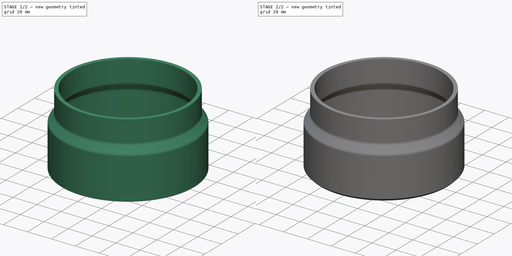
[diagram: build sequence overview — one tinted view per stage of 2, left to right]
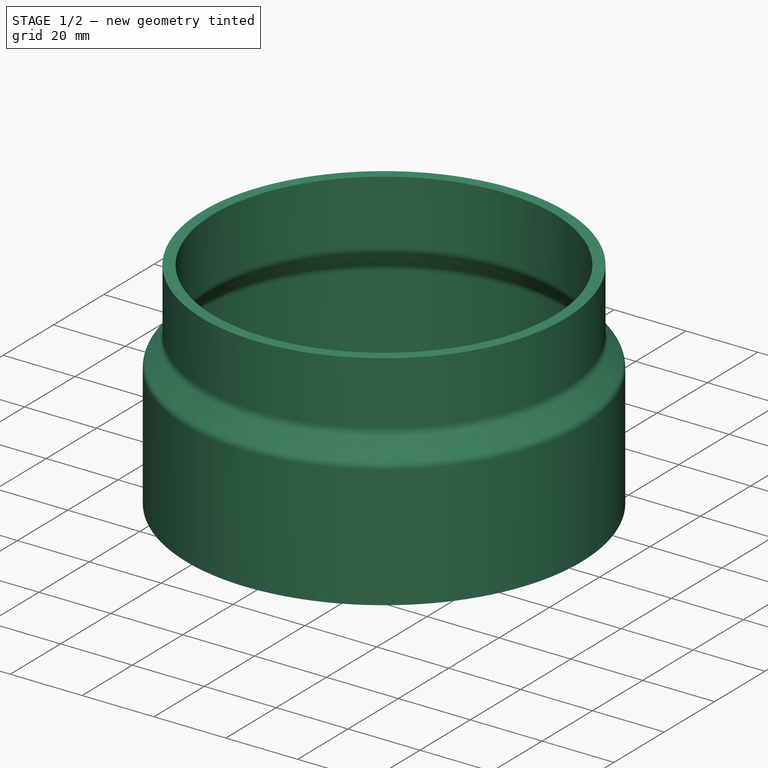
[diagram: stage 1 of 2 — iso view after this stage's code; geometry added in this stage tinted green]
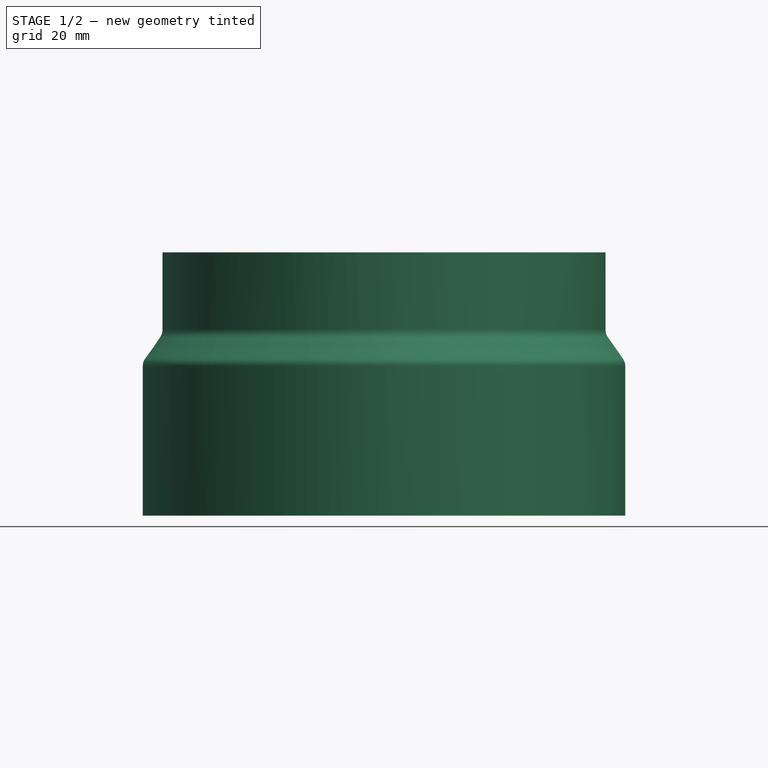
[diagram: stage 1 of 2 — front view after this stage's code; geometry added in this stage tinted green]
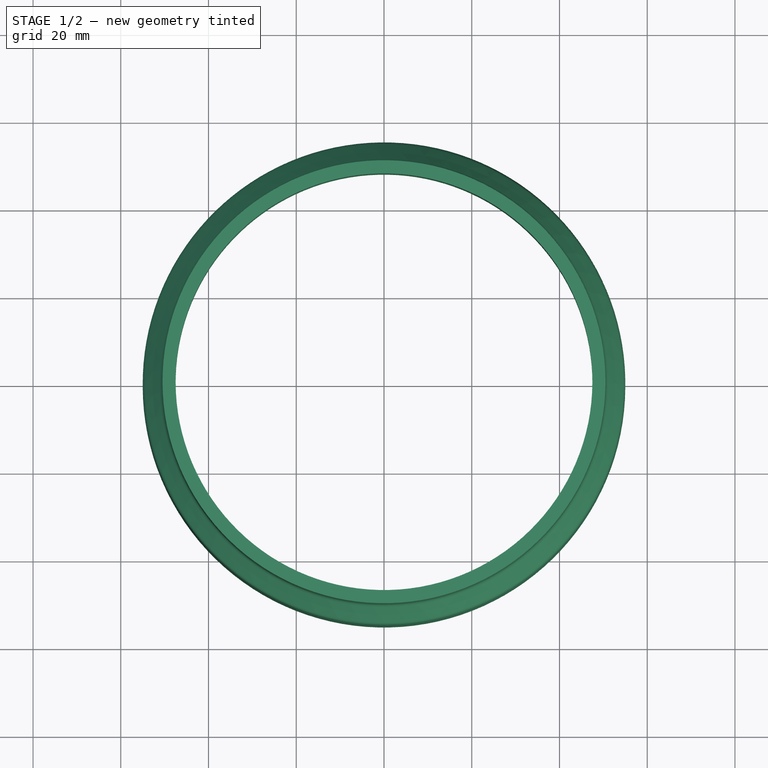
[diagram: stage 1 of 2 — top view after this stage's code; geometry added in this stage tinted green]
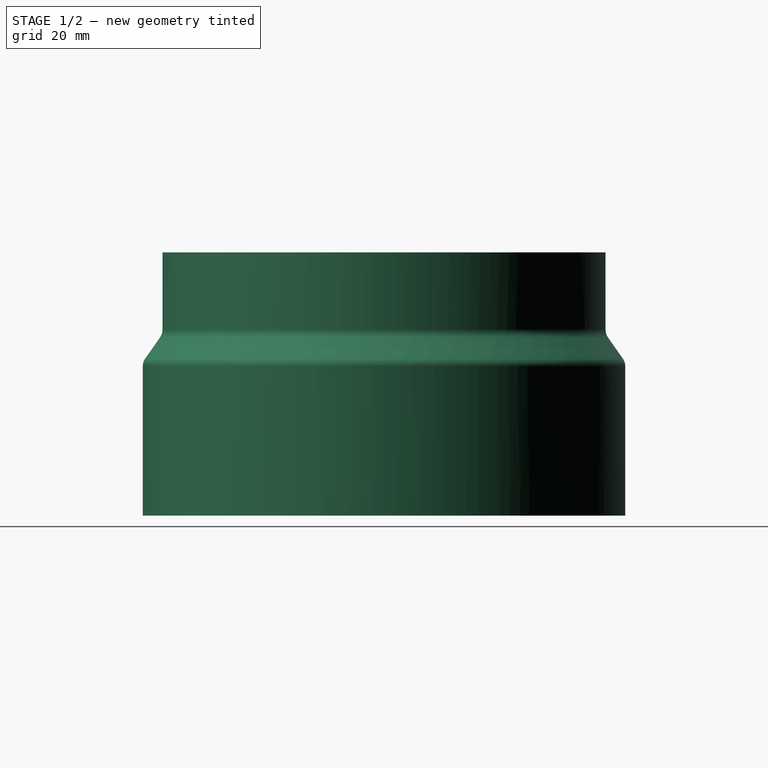
[diagram: stage 1 of 2 — right view after this stage's code; geometry added in this stage tinted green]
FCSTD DOCUMENT  (FreeCAD 0.20R29410 (Git))
Label: blower hose adapter
License: All rights reserved
LicenseURL: http://en.wikipedia.org/wiki/All_rights_reserved
objects: Sketcher::SketchObject×1, PartDesign::Revolution×1, PartDesign::Fillet×1, PartDesign::Chamfer×1, PartDesign::Body×1
note: 8 computed .brp shape members not serialized (recipe doc carries the construction recipe); baked Part::Feature solids carry a one-line shape summary decoded from their .brp

FEATURE [Sketcher::SketchObject] Sketch
  FullyConstrained = false
  MapMode = 5
  Placement = pos=(0,0,0) rot=(1,0,0;1.5708rad)
  Support = -> [XZ_Plane001]
  sketch-geometry (9):
    g0: LineSegment StartX=52 StartY=0 StartZ=0 EndX=52 EndY=35 EndZ=0
    g1: LineSegment StartX=52 StartY=35 StartZ=0 EndX=47.5 EndY=41.4267 EndZ=0
    g2: LineSegment StartX=47.5 StartY=41.4267 StartZ=0 EndX=47.5 EndY=60 EndZ=0
    g3: LineSegment StartX=47.5 StartY=60 StartZ=0 EndX=50.5 EndY=60 EndZ=0
    g4: LineSegment StartX=50.5 StartY=60 StartZ=0 EndX=50.5 EndY=41.4267 EndZ=0
    g5: LineSegment StartX=50.5 StartY=41.4267 StartZ=0 EndX=55 EndY=35 EndZ=0
    g6: LineSegment StartX=55 StartY=35 StartZ=0 EndX=55 EndY=0 EndZ=0
    g7: LineSegment StartX=52 StartY=0 StartZ=0 EndX=55 EndY=0 EndZ=0
    g8: LineSegment StartX=55 StartY=35 StartZ=0 EndX=1.39923 EndY=35 EndZ=0
  constraints (26):
    c: Vertical(g0)
    c: Coincident(g1,g0)
    c: Vertical(g2)
    c: Coincident(g3,g2)
    c: Horizontal(g3)
    c: Coincident(g4,g3)
    c: Vertical(g4)
    c: Coincident(g5,g4)
    c: Coincident(g6,g5)
    c: Vertical(g6)
    c: Coincident(g7,g0)
    c: Coincident(g7,g6)
    c: Horizontal(g7)
    c: DistanceX(g-1,g6) = 55
    c: DistanceX(g7,g7) = 3
    c: DistanceX(g3,g3) = 3
    c: DistanceX(g-1,g3) = 50.5
    c: Coincident(g1,g2)
    c: Parallel(g1,g5)
    c: Angle(g1,g0) = 2.53073
    c: DistanceY(g6,g6) = 35
    c: PointOnObject(g0,g-1)
    c: DistanceY(g2) = 60
    c: Coincident(g8,g5)
    c: Horizontal(g8)
    c: PointOnObject(g0,g8)
FEATURE [PartDesign::Revolution] Revolution
  Angle = 360
  Axis = (0,2e-16,1)
  Base = (0,0,0)
  Placement = pos=(0,0,0) rot=(1,0,0;1.5708rad)
  Profile = -> Sketch
  ReferenceAxis = -> Sketch [V_Axis]
  Reversed = true
FEATURE [PartDesign::Fillet] Fillet
  Base = -> Revolution [Face6,Face2]
  BaseFeature = -> Revolution
  Placement = pos=(0,0,0) rot=(1,0,0;1.5708rad)
  Radius = 3
  SupportTransform = false
  UseAllEdges = false
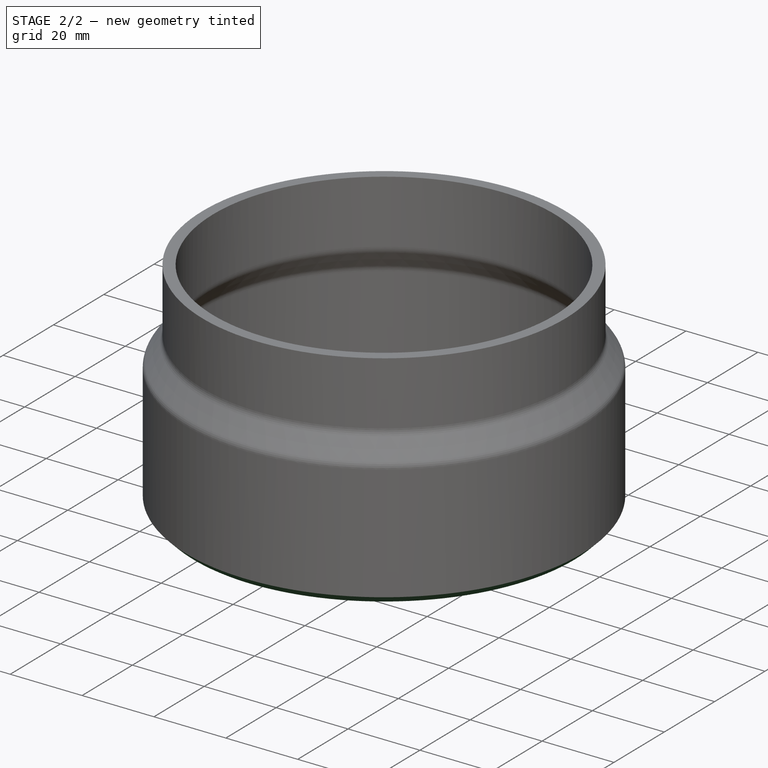
[diagram: stage 2 of 2 — iso view after this stage's code; geometry added in this stage tinted green]
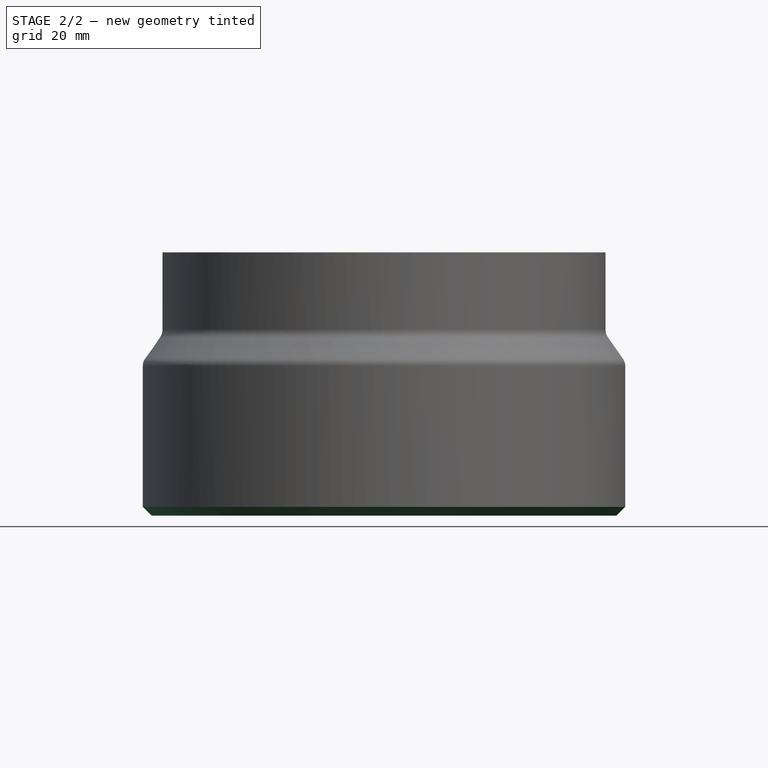
[diagram: stage 2 of 2 — front view after this stage's code; geometry added in this stage tinted green]
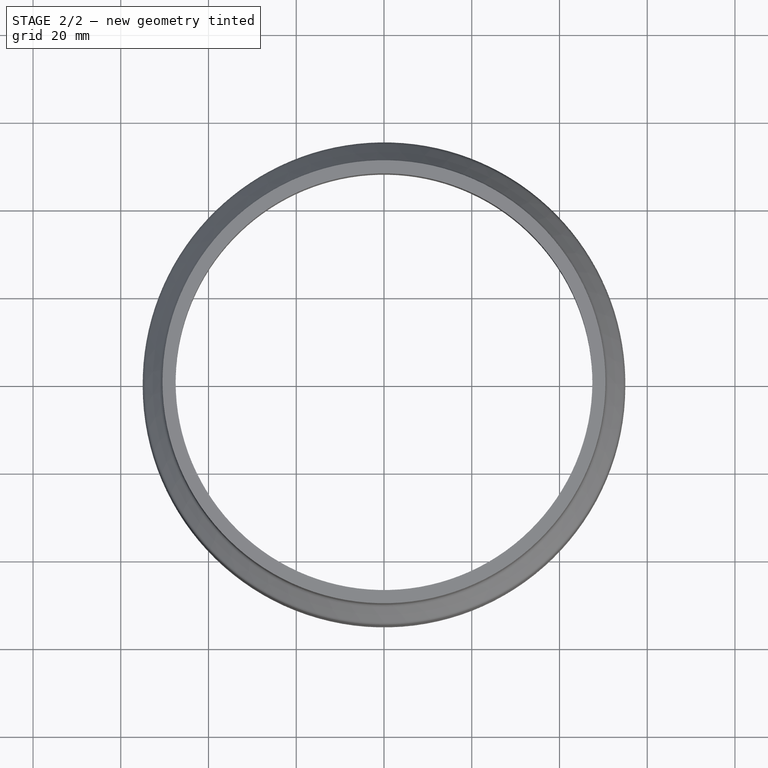
[diagram: stage 2 of 2 — top view after this stage's code; geometry added in this stage tinted green]
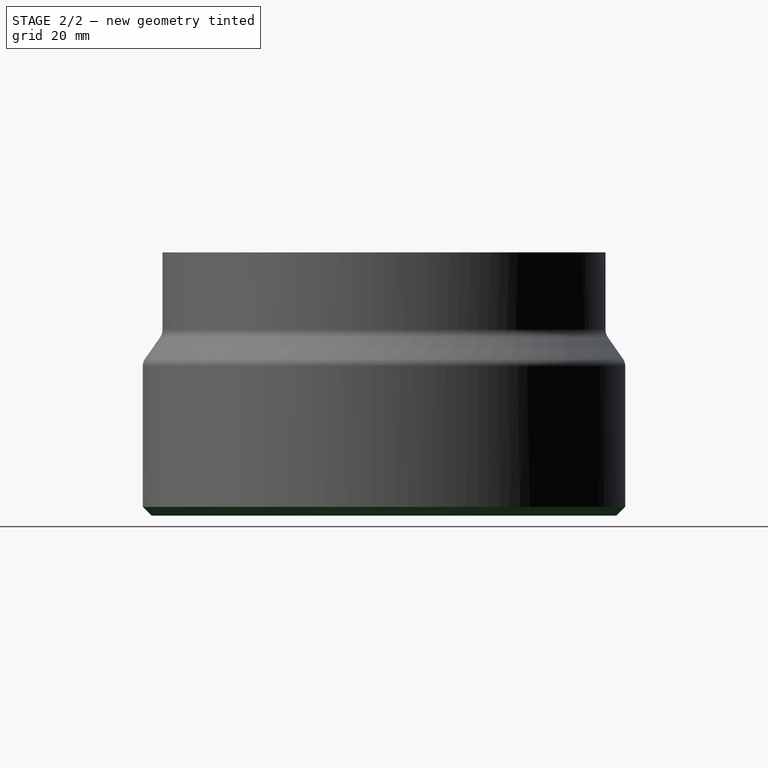
[diagram: stage 2 of 2 — right view after this stage's code; geometry added in this stage tinted green]
FEATURE [PartDesign::Chamfer] Chamfer
  Angle = 45
  Base = -> Fillet [Edge6]
  BaseFeature = -> Fillet
  ChamferType = 0
  FlipDirection = false
  Placement = pos=(0,0,0) rot=(1,0,0;1.5708rad)
  Size = 2
  Size2 = 1
  SupportTransform = false
  UseAllEdges = false
FEATURE [PartDesign::Body] Body001
  Group = -> [Sketch,Revolution,Fillet,Chamfer]
  Origin = -> Origin001
  Tip = -> Chamfer
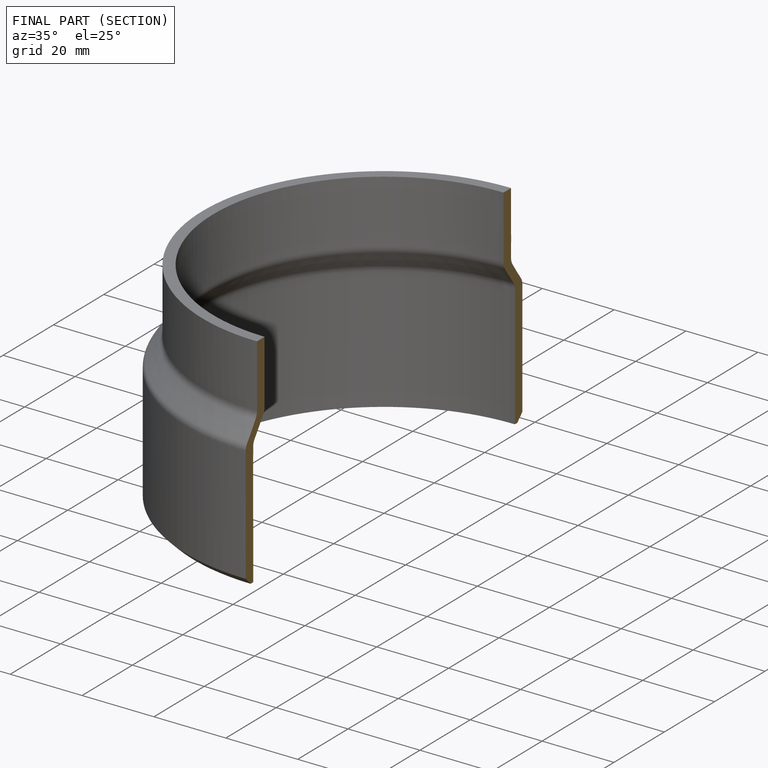
[diagram: finished part — half-section view (interior)]
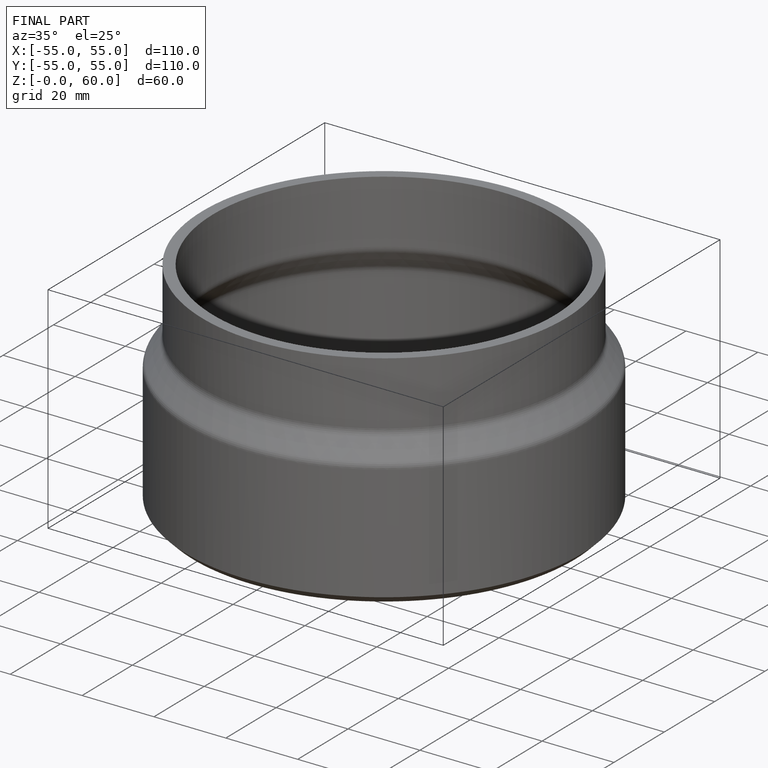
[diagram: finished part — iso view with bounding-box wireframe]
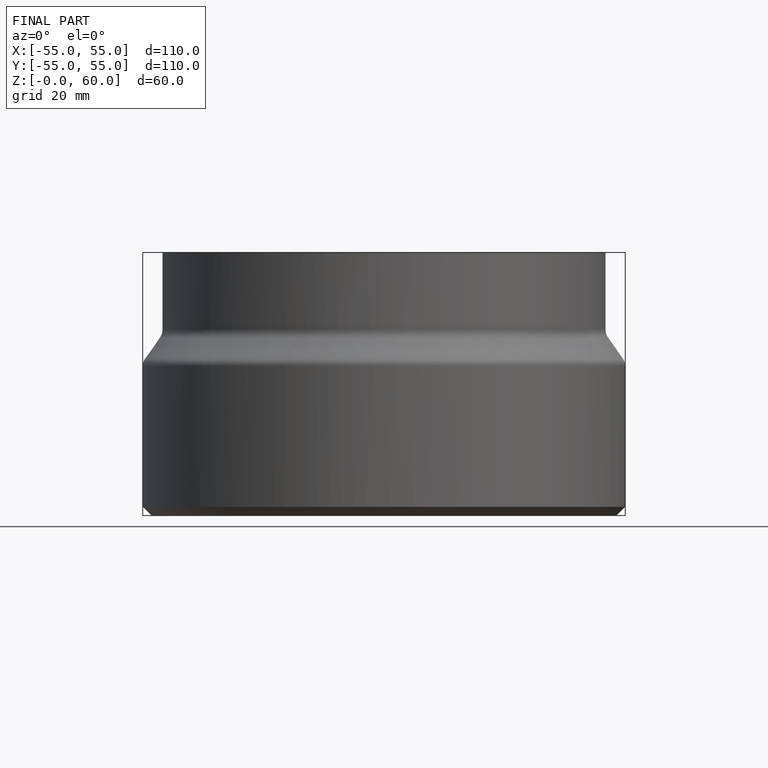
[diagram: finished part — front view with bounding-box wireframe]
